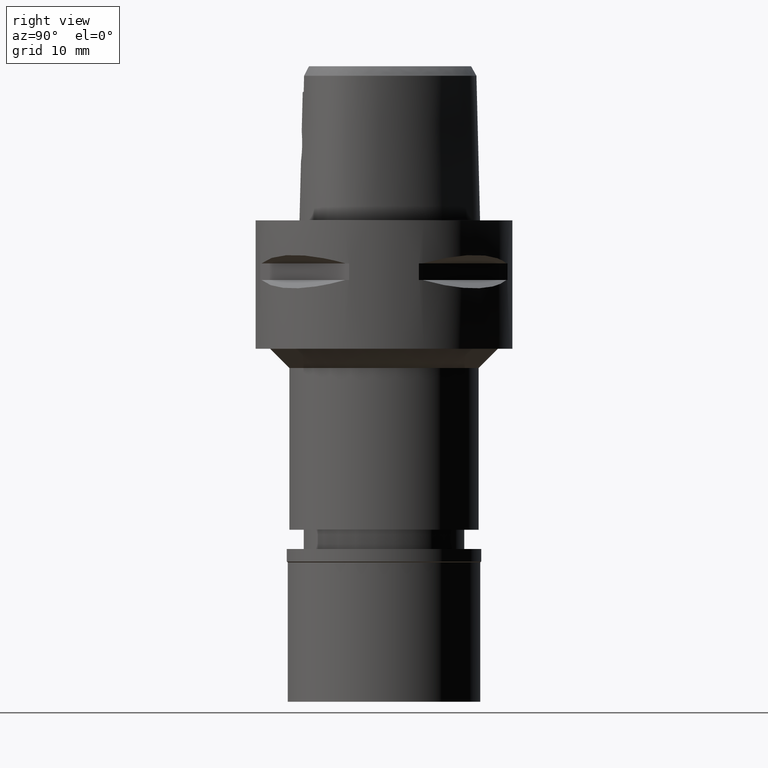
[diagram: clean part render]
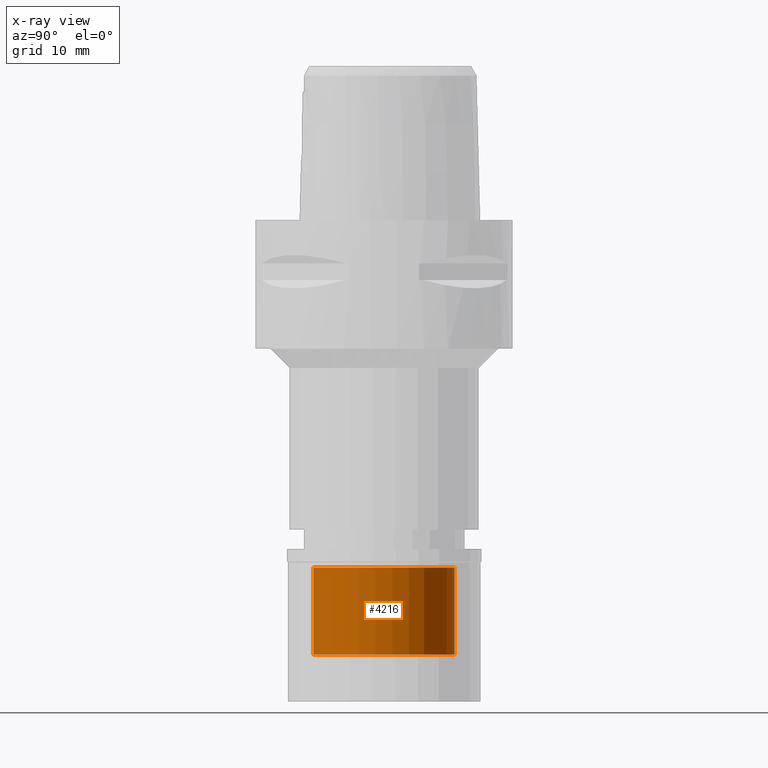
[diagram: x-ray — body ghosted, one internal face saturated and labeled with its STEP entity id]
A machine part, right view, then the same camera in x-ray: the body is ghosted and one INTERNAL B-rep face — a face not visible from any outside direction — is saturated and labeled: STEP entity #4216.
In plain terms, the highlighted cylindrical surface (partial cylindrical patch) has radius 11 mm, axis along (0, 0, -1).
Its self-contained STEP definition (entity closure, byte-faithful):
#145 = EDGE_CURVE ( 'NONE', #3445, #1795, #1517, .T. ) ;
#183 = CARTESIAN_POINT ( 'NONE',  ( 0.0000000000000000000, 11.00000000000000000, -2.899999999999999911 ) ) ;
#266 = EDGE_CURVE ( 'NONE', #4009, #3445, #3395, .T. ) ;
#380 = VERTEX_POINT ( 'NONE', #892 ) ;
#404 = DIRECTION ( 'NONE',  ( 0.0000000000000000000, 0.0000000000000000000, 1.000000000000000000 ) ) ;
#510 = CARTESIAN_POINT ( 'NONE',  ( 0.0000000000000000000, 0.0000000000000000000, 0.0000000000000000000 ) ) ;
#530 = CIRCLE ( 'NONE', #2443, 11.00000000000000000 ) ;
#892 = CARTESIAN_POINT ( 'NONE',  ( 0.0000000000000000000, 11.00000000000000000, -16.50000000000000000 ) ) ;
#898 = AXIS2_PLACEMENT_3D ( 'NONE', #2584, #404, #4095 ) ;
#1227 = DIRECTION ( 'NONE',  ( 0.0000000000000000000, 0.0000000000000000000, -1.000000000000000000 ) ) ;
#1286 = EDGE_CURVE ( 'NONE', #380, #4009, #530, .T. ) ;
#1293 = VECTOR ( 'NONE', #2700, 1000.000000000000000 ) ;
#1516 = CYLINDRICAL_SURFACE ( 'NONE', #2945, 11.00000000000000000 ) ;
#1517 = CIRCLE ( 'NONE', #898, 11.00000000000000000 ) ;
#1767 = DIRECTION ( 'NONE',  ( 0.0000000000000000000, 0.0000000000000000000, -1.000000000000000000 ) ) ;
#1795 = VERTEX_POINT ( 'NONE', #183 ) ;
#2307 = DIRECTION ( 'NONE',  ( 0.0000000000000000000, -1.000000000000000000, 0.0000000000000000000 ) ) ;
#2443 = AXIS2_PLACEMENT_3D ( 'NONE', #4661, #1767, #2820 ) ;
#2584 = CARTESIAN_POINT ( 'NONE',  ( 0.0000000000000000000, 0.0000000000000000000, -2.899999999999999911 ) ) ;
#2592 = DIRECTION ( 'NONE',  ( 0.0000000000000000000, 0.0000000000000000000, 1.000000000000000000 ) ) ;
#2600 = FACE_OUTER_BOUND ( 'NONE', #4288, .T. ) ;
#2678 = CARTESIAN_POINT ( 'NONE',  ( 0.0000000000000000000, -11.00000000000000000, -16.50000000000000000 ) ) ;
#2685 = ORIENTED_EDGE ( 'NONE', *, *, #145, .T. ) ;
#2700 = DIRECTION ( 'NONE',  ( 0.0000000000000000000, 0.0000000000000000000, 1.000000000000000000 ) ) ;
#2820 = DIRECTION ( 'NONE',  ( 0.0000000000000000000, 1.000000000000000000, 0.0000000000000000000 ) ) ;
#2945 = AXIS2_PLACEMENT_3D ( 'NONE', #510, #1227, #2307 ) ;
#2954 = CARTESIAN_POINT ( 'NONE',  ( 0.0000000000000000000, -11.00000000000000000, -2.899999999999999911 ) ) ;
#3395 = LINE ( 'NONE', #2678, #1293 ) ;
#3422 = ORIENTED_EDGE ( 'NONE', *, *, #1286, .T. ) ;
#3445 = VERTEX_POINT ( 'NONE', #2954 ) ;
#3715 = CARTESIAN_POINT ( 'NONE',  ( 0.0000000000000000000, 11.00000000000000000, -16.50000000000000000 ) ) ;
#3852 = ORIENTED_EDGE ( 'NONE', *, *, #4424, .F. ) ;
#3945 = VECTOR ( 'NONE', #2592, 1000.000000000000000 ) ;
#4009 = VERTEX_POINT ( 'NONE', #4045 ) ;
#4045 = CARTESIAN_POINT ( 'NONE',  ( 0.0000000000000000000, -11.00000000000000000, -16.50000000000000000 ) ) ;
#4095 = DIRECTION ( 'NONE',  ( 0.0000000000000000000, -1.000000000000000000, 0.0000000000000000000 ) ) ;
#4216 = ADVANCED_FACE ( 'NONE', ( #2600 ), #1516, .F. ) ;
#4257 = ORIENTED_EDGE ( 'NONE', *, *, #266, .T. ) ;
#4288 = EDGE_LOOP ( 'NONE', ( #3422, #4257, #2685, #3852 ) ) ;
#4424 = EDGE_CURVE ( 'NONE', #380, #1795, #4461, .T. ) ;
#4461 = LINE ( 'NONE', #3715, #3945 ) ;
#4661 = CARTESIAN_POINT ( 'NONE',  ( 0.0000000000000000000, 0.0000000000000000000, -16.50000000000000000 ) ) ;